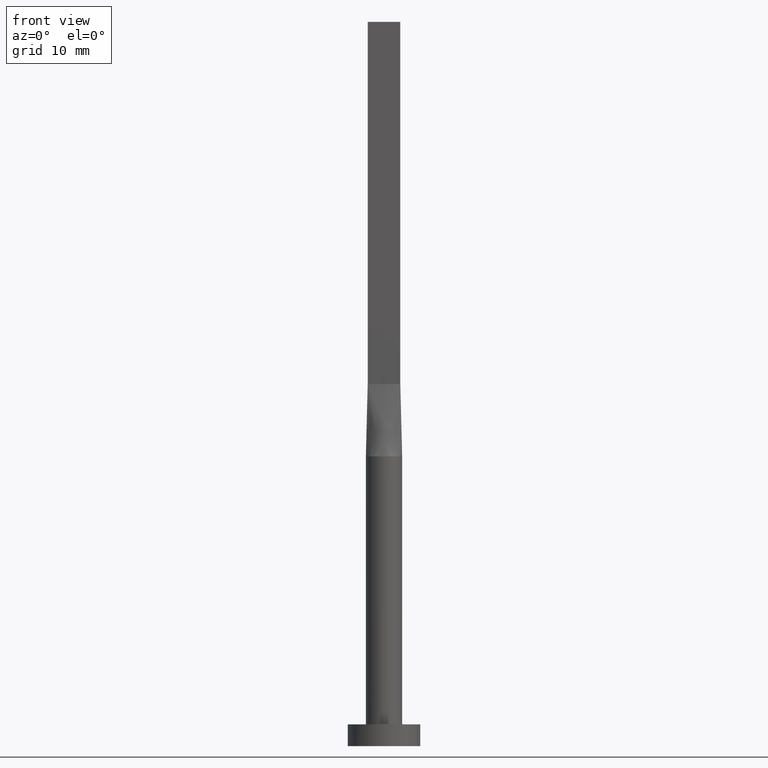
[diagram: clean part render]
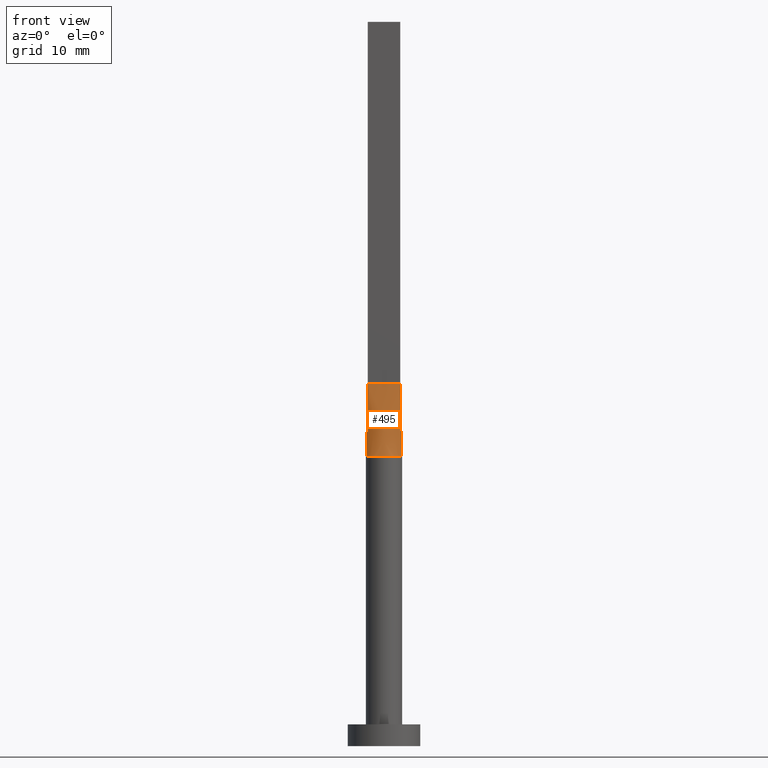
[diagram: same view with one face highlighted and labeled with its STEP entity id]
A machine part, front view. The second image highlights one B-rep face of the part: STEP entity #495.
In plain terms, the highlighted face is a freeform B-spline surface patch.
Its self-contained STEP definition (entity closure, byte-faithful):
#4 = B_SPLINE_SURFACE_WITH_KNOTS ( 'NONE', 3, 1, ( 
 ( #30, #261 ),
 ( #441, #512 ),
 ( #389, #312 ),
 ( #481, #37 ),
 ( #355, #167 ),
 ( #80, #439 ),
 ( #472, #395 ),
 ( #521, #518 ),
 ( #478, #78 ),
 ( #73, #115 ),
 ( #214, #35 ),
 ( #218, #468 ),
 ( #398, #266 ),
 ( #359, #436 ),
 ( #402, #393 ),
 ( #165, #216 ),
 ( #475, #221 ),
 ( #258, #125 ) ),
 .UNSPECIFIED., .F., .F., .F.,
 ( 4, 2, 2, 2, 2, 2, 2, 2, 4 ),
 ( 2, 2 ),
 ( 0.000000000000000000, 0.1250000000000000555, 0.2500000000000001110, 0.3750000000000001110, 0.5000000000000001110, 0.6250000000000000000, 0.7500000000000000000, 0.8749999999999998890, 1.000000000000000000 ),
 ( 0.000000000000000000, 1.000000000000000000 ),
 .UNSPECIFIED. ) ;
#14 = ORIENTED_EDGE ( 'NONE', *, *, #332, .T. ) ;
#30 = CARTESIAN_POINT ( 'NONE',  ( -2.371708245126284975, -0.7905694150420944366, 40.00000000000000000 ) ) ;
#35 = CARTESIAN_POINT ( 'NONE',  ( 0.3750000000000000000, -0.7499999999999996669, 50.00000000000000000 ) ) ;
#37 = CARTESIAN_POINT ( 'NONE',  ( -1.499999999999999334, -0.7499999999999995559, 50.00000000000000000 ) ) ;
#41 = CARTESIAN_POINT ( 'NONE',  ( -2.371775648085652222, -0.7905922034696525325, 40.00000000000000000 ) ) ;
#47 = AXIS2_PLACEMENT_3D ( 'NONE', #383, #281, #61 ) ;
#50 = DIRECTION ( 'NONE',  ( -0.01216982305197521208, 0.004056607683991797497, 0.9999177162851859979 ) ) ;
#61 = DIRECTION ( 'NONE',  ( 1.000000000000000000, 0.000000000000000000, 0.000000000000000000 ) ) ;
#63 = CIRCLE ( 'NONE', #47, 2.500000000000000000 ) ;
#73 = CARTESIAN_POINT ( 'NONE',  ( 0.3003163416900518912, -2.500000000000001332, 40.00000000000000000 ) ) ;
#78 = CARTESIAN_POINT ( 'NONE',  ( -0.1874999999999997780, -0.7499999999999996669, 50.00000000000000000 ) ) ;
#79 = CARTESIAN_POINT ( 'NONE',  ( 2.250000000000000000, -0.7499999999999997780, 50.00000000000000000 ) ) ;
#80 = CARTESIAN_POINT ( 'NONE',  ( -1.390086206340439334, -2.094828891646495883, 40.00000000000000000 ) ) ;
#94 = EDGE_LOOP ( 'NONE', ( #14, #181, #424, #440 ) ) ;
#115 = CARTESIAN_POINT ( 'NONE',  ( 0.1875000000000000278, -0.7499999999999996669, 50.00000000000000000 ) ) ;
#116 = VERTEX_POINT ( 'NONE', #79 ) ;
#125 = CARTESIAN_POINT ( 'NONE',  ( 2.250000000000000000, -0.7499999999999997780, 50.00000000000000000 ) ) ;
#151 = CARTESIAN_POINT ( 'NONE',  ( 2.310854122563142266, -0.7702847075210476069, 45.00000000000000000 ) ) ;
#152 = VERTEX_POINT ( 'NONE', #41 ) ;
#165 = CARTESIAN_POINT ( 'NONE',  ( 2.218933079238280204, -1.174882007251999871, 40.00000000000000000 ) ) ;
#167 = CARTESIAN_POINT ( 'NONE',  ( -1.312499999999999334, -0.7499999999999995559, 50.00000000000000000 ) ) ;
#169 = VECTOR ( 'NONE', #50, 1000.000000000000114 ) ;
#172 = EDGE_CURVE ( 'NONE', #448, #116, #581, .T. ) ;
#181 = ORIENTED_EDGE ( 'NONE', *, *, #413, .T. ) ;
#214 = CARTESIAN_POINT ( 'NONE',  ( 0.6000386972366476002, -2.444291348568452538, 40.00000000000000000 ) ) ;
#216 = CARTESIAN_POINT ( 'NONE',  ( 1.874999999999999556, -0.7499999999999997780, 50.00000000000000000 ) ) ;
#218 = CARTESIAN_POINT ( 'NONE',  ( 1.145194483530141083, -2.241235424885161365, 40.00000000000000000 ) ) ;
#221 = CARTESIAN_POINT ( 'NONE',  ( 2.062499999999999556, -0.7499999999999997780, 50.00000000000000000 ) ) ;
#224 = CARTESIAN_POINT ( 'NONE',  ( -2.250000000000000000, -0.7499999999999995559, 50.00000000000000000 ) ) ;
#232 = CARTESIAN_POINT ( 'NONE',  ( 2.371798206859841329, -0.7905998626979697796, 40.00000000000000000 ) ) ;
#258 = CARTESIAN_POINT ( 'NONE',  ( 2.371708245126284531, -0.7905694150420953248, 40.00000000000000000 ) ) ;
#261 = CARTESIAN_POINT ( 'NONE',  ( -2.250000000000000000, -0.7499999999999995559, 50.00000000000000000 ) ) ;
#264 = FACE_OUTER_BOUND ( 'NONE', #94, .T. ) ;
#266 = CARTESIAN_POINT ( 'NONE',  ( 0.9375000000000001110, -0.7499999999999997780, 50.00000000000000000 ) ) ;
#275 = CARTESIAN_POINT ( 'NONE',  ( -2.310854122563142266, -0.7702847075210469407, 45.00000000000000000 ) ) ;
#277 = VECTOR ( 'NONE', #376, 1000.000000000000114 ) ;
#281 = DIRECTION ( 'NONE',  ( 0.000000000000000000, 0.000000000000000000, 1.000000000000000000 ) ) ;
#297 = VERTEX_POINT ( 'NONE', #232 ) ;
#305 = VECTOR ( 'NONE', #329, 1000.000000000000000 ) ;
#312 = CARTESIAN_POINT ( 'NONE',  ( -1.874999999999999556, -0.7499999999999995559, 50.00000000000000000 ) ) ;
#314 = LINE ( 'NONE', #275, #277 ) ;
#329 = DIRECTION ( 'NONE',  ( 1.000000000000000000, -4.818676322157797621E-17, 0.000000000000000000 ) ) ;
#332 = EDGE_CURVE ( 'NONE', #152, #297, #63, .T. ) ;
#338 = CARTESIAN_POINT ( 'NONE',  ( -2.250000000000000000, -0.7499999999999995559, 50.00000000000000000 ) ) ;
#355 = CARTESIAN_POINT ( 'NONE',  ( -1.799471046981195421, -1.755719709239273785, 40.00000000000000000 ) ) ;
#359 = CARTESIAN_POINT ( 'NONE',  ( 1.799471046981195199, -1.755719709239274229, 39.99999999999998579 ) ) ;
#376 = DIRECTION ( 'NONE',  ( -0.01216982305197525371, -0.004056607683991732445, -0.9999177162851859979 ) ) ;
#380 = LINE ( 'NONE', #151, #169 ) ;
#383 = CARTESIAN_POINT ( 'NONE',  ( 0.000000000000000000, 0.000000000000000000, 40.00000000000000000 ) ) ;
#389 = CARTESIAN_POINT ( 'NONE',  ( -2.218933079238281980, -1.174882007251999427, 40.00000000000000711 ) ) ;
#393 = CARTESIAN_POINT ( 'NONE',  ( 1.499999999999999556, -0.7499999999999997780, 50.00000000000000000 ) ) ;
#395 = CARTESIAN_POINT ( 'NONE',  ( -0.7499999999999993339, -0.7499999999999995559, 50.00000000000000000 ) ) ;
#398 = CARTESIAN_POINT ( 'NONE',  ( 1.390086206340438890, -2.094828891646495883, 40.00000000000000000 ) ) ;
#402 = CARTESIAN_POINT ( 'NONE',  ( 1.964343640889991249, -1.563766543189047953, 40.00000000000002132 ) ) ;
#413 = EDGE_CURVE ( 'NONE', #297, #116, #380, .T. ) ;
#424 = ORIENTED_EDGE ( 'NONE', *, *, #172, .F. ) ;
#436 = CARTESIAN_POINT ( 'NONE',  ( 1.312499999999999778, -0.7499999999999997780, 50.00000000000000000 ) ) ;
#439 = CARTESIAN_POINT ( 'NONE',  ( -0.9374999999999993339, -0.7499999999999995559, 50.00000000000000000 ) ) ;
#440 = ORIENTED_EDGE ( 'NONE', *, *, #574, .T. ) ;
#441 = CARTESIAN_POINT ( 'NONE',  ( -2.309208245126285419, -0.9780694150420946587, 40.00000000000000000 ) ) ;
#448 = VERTEX_POINT ( 'NONE', #338 ) ;
#468 = CARTESIAN_POINT ( 'NONE',  ( 0.7500000000000000000, -0.7499999999999996669, 50.00000000000000000 ) ) ;
#472 = CARTESIAN_POINT ( 'NONE',  ( -1.145194483530141305, -2.241235424885160477, 40.00000000000000000 ) ) ;
#475 = CARTESIAN_POINT ( 'NONE',  ( 2.309208245126284087, -0.9780694150420953248, 39.99999999999999289 ) ) ;
#478 = CARTESIAN_POINT ( 'NONE',  ( -0.3003163416900532234, -2.499999999999999556, 40.00000000000000000 ) ) ;
#481 = CARTESIAN_POINT ( 'NONE',  ( -1.964343640889991249, -1.563766543189046843, 40.00000000000000711 ) ) ;
#495 = ADVANCED_FACE ( 'NONE', ( #264 ), #4, .T. ) ;
#512 = CARTESIAN_POINT ( 'NONE',  ( -2.062499999999999556, -0.7499999999999995559, 50.00000000000000000 ) ) ;
#518 = CARTESIAN_POINT ( 'NONE',  ( -0.3749999999999996114, -0.7499999999999995559, 50.00000000000000000 ) ) ;
#521 = CARTESIAN_POINT ( 'NONE',  ( -0.6000386972366480443, -2.444291348568451649, 40.00000000000000000 ) ) ;
#574 = EDGE_CURVE ( 'NONE', #448, #152, #314, .T. ) ;
#581 = LINE ( 'NONE', #224, #305 ) ;